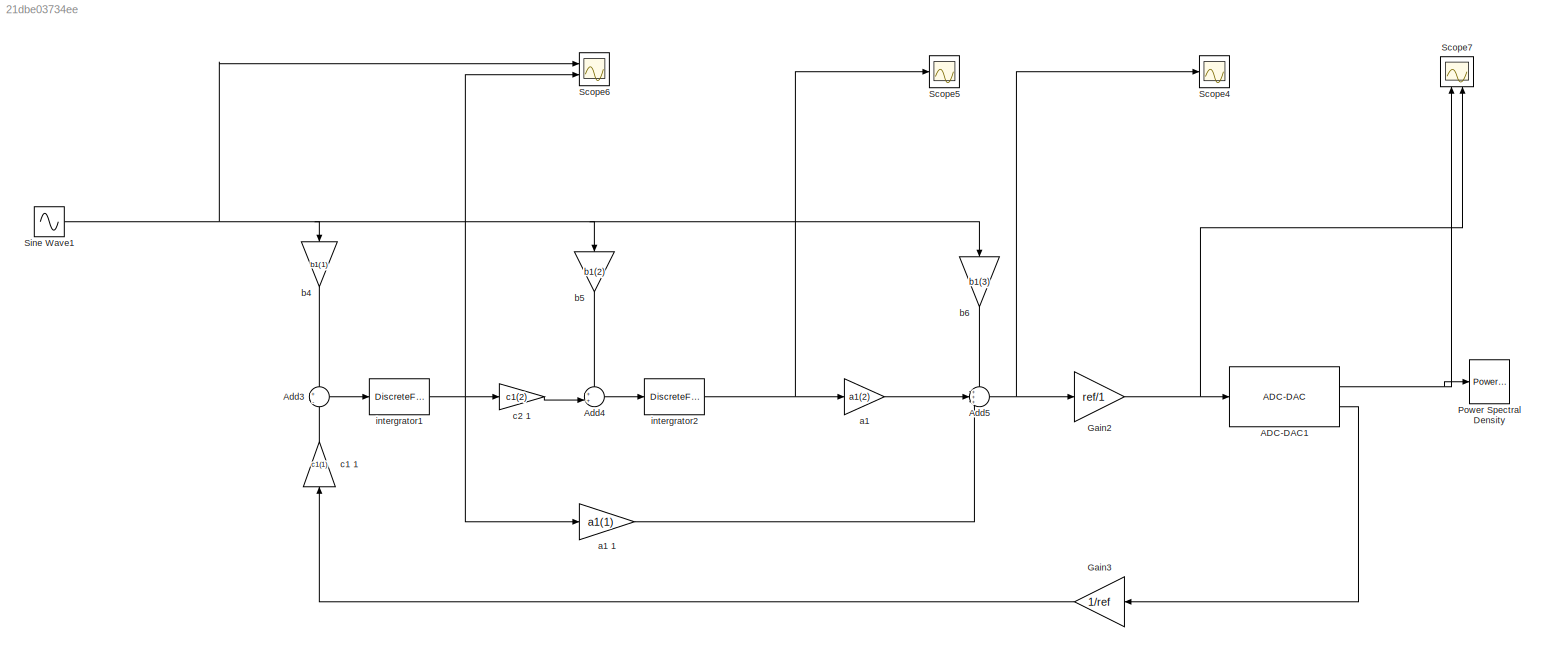
MODEL slx_21dbe03734ee
KIND model
CONFIG AbsTol = auto
CONFIG EnableMultiTasking = off
CONFIG FixedStep = auto
CONFIG InitFcn = %fs=1024*2e4;\n%osr=512;\nts=1/fs;\n\nNcycle=37;\nMpoints=2^16;\nfin=fs*Ncycle/Mpoints;\n\n\nref=2;\n
CONFIG MaxStep = auto
CONFIG MinStep = auto
CONFIG RelTol = 1e-3
CONFIG SampleTimeConstraint = Unconstrained
CONFIG Solver = VariableStepAuto
CONFIG SolverName = VariableStepAuto
CONFIG StartTime = 0.0
CONFIG StopTime = ts*(Mpoints+10)
BLOCK [Reference] ADC-DAC1  REF=SDtoolbox/ADC-DAC
  Ports = [1, 2]
  SourceBlock = SDtoolbox/ADC-DAC
  SourceProductName = SDtoolbox
BLOCK [Sum] Add3
  IconShape = round
  InputSameDT = off
  Inputs = +|-
  OutDataTypeStr = Inherit: Inherit via internal rule
  Ports = [2, 1]
  SaturateOnIntegerOverflow = off
BLOCK [Sum] Add4
  IconShape = round
  InputSameDT = off
  Inputs = ++|
  OutDataTypeStr = Inherit: Inherit via internal rule
  Ports = [2, 1]
  SaturateOnIntegerOverflow = off
BLOCK [Sum] Add5
  IconShape = round
  InputSameDT = off
  Inputs = +++
  OutDataTypeStr = Inherit: Inherit via internal rule
  Ports = [3, 1]
  SaturateOnIntegerOverflow = off
BLOCK [Gain] Gain2
  Gain = ref/1
  OutDataTypeStr = Inherit: Inherit via internal rule
  ParamDataTypeStr = Inherit: Inherit via internal rule
  SaturateOnIntegerOverflow = off
BLOCK [Gain] Gain3
  Gain = 1/ref
  OutDataTypeStr = Inherit: Inherit via internal rule
  ParamDataTypeStr = Inherit: Inherit via internal rule
  SaturateOnIntegerOverflow = off
BLOCK [Reference] Power Spectral Density  REF=SDtoolbox/Power Spectral Density
  Ports = [1]
  SourceBlock = SDtoolbox/Power Spectral Density
  SourceProductName = SDtoolbox
BLOCK [Scope] Scope4
  Floating = off
  NumInputPorts = 1
  Ports = [1]
  ScopeSpecificationString = Simulink.scopes.TimeScopeBlockCfg('CurrentConfiguration', extmgr.ConfigurationSet(extmgr.Configuration('Core','General UI',true),extmgr.Configuration('Core','Source UI',true),extmgr.Configuration('Sources','WiredSimulink',true,'DataLoggingVariableName','ScopeData1'),extmgr.Configuration('Visuals','Time Domain',true,'SerializedDisplays',{struct('MinYLimReal','-1.06355','MaxYLimReal','1.0553','YLabe...<+1483ch>
BLOCK [Scope] Scope5
  Floating = off
  NumInputPorts = 1
  Ports = [1]
  ScopeSpecificationString = Simulink.scopes.TimeScopeBlockCfg('CurrentConfiguration', extmgr.ConfigurationSet(extmgr.Configuration('Core','General UI',true),extmgr.Configuration('Core','Source UI',true),extmgr.Configuration('Sources','WiredSimulink',true,'DataLoggingVariableName','ScopeData2'),extmgr.Configuration('Visuals','Time Domain',true,'SerializedDisplays',{struct('MinYLimReal','-0.86863','MaxYLimReal','0.8532','YLabe...<+1491ch>
BLOCK [Scope] Scope6
  Floating = off
  NumInputPorts = 2
  Ports = [2]
  ScopeSpecificationString = Simulink.scopes.TimeScopeBlockCfg('CurrentConfiguration', extmgr.ConfigurationSet(extmgr.Configuration('Core','General UI',true),extmgr.Configuration('Core','Source UI',true),extmgr.Configuration('Sources','WiredSimulink',true,'DataLoggingVariableName','ScopeData3'),extmgr.Configuration('Visuals','Time Domain',true,'SerializedDisplays',{struct('MinYLimReal','-3.1022','MaxYLimReal','3.07338','YLabe...<+1581ch>
BLOCK [Scope] Scope7
  Floating = off
  NumInputPorts = 2
  Ports = [2]
  ScopeSpecificationString = Simulink.scopes.TimeScopeBlockCfg('CurrentConfiguration', extmgr.ConfigurationSet(extmgr.Configuration('Core','General UI',true),extmgr.Configuration('Core','Source UI',true),extmgr.Configuration('Sources','WiredSimulink',true),extmgr.Configuration('Visuals','Time Domain',true,'SerializedDisplays',{struct('MinYLimReal','-1.93889','MaxYLimReal','1.96346','YLabelReal','','MinYLimMag','0.00000','MaxY...<+1439ch>
BLOCK [Sin] Sine Wave1
  Amplitude = 0.435
  Frequency = fin*2*pi
  Ports = [0, 1]
  SampleTime = ts
BLOCK [Gain] a1
  Gain = a1(2)
  OutDataTypeStr = Inherit: Inherit via internal rule
  ParamDataTypeStr = Inherit: Inherit via internal rule
  SaturateOnIntegerOverflow = off
BLOCK [Gain] a1 1
  Gain = a1(1)
  OutDataTypeStr = Inherit: Inherit via internal rule
  ParamDataTypeStr = Inherit: Inherit via internal rule
  SaturateOnIntegerOverflow = off
BLOCK [Gain] b4
  Gain = b1(1)
  OutDataTypeStr = Inherit: Inherit via internal rule
  ParamDataTypeStr = Inherit: Inherit via internal rule
  SaturateOnIntegerOverflow = off
BLOCK [Gain] b5
  Gain = b1(2)
  OutDataTypeStr = Inherit: Inherit via internal rule
  ParamDataTypeStr = Inherit: Inherit via internal rule
  SaturateOnIntegerOverflow = off
BLOCK [Gain] b6
  Gain = b1(3)
  OutDataTypeStr = Inherit: Inherit via internal rule
  ParamDataTypeStr = Inherit: Inherit via internal rule
  SaturateOnIntegerOverflow = off
BLOCK [Gain] c1 1
  Gain = c1(1)
  OutDataTypeStr = Inherit: Inherit via internal rule
  ParamDataTypeStr = Inherit: Inherit via internal rule
  SaturateOnIntegerOverflow = off
BLOCK [Gain] c2 1
  Gain = c1(2)
  OutDataTypeStr = Inherit: Inherit via internal rule
  ParamDataTypeStr = Inherit: Inherit via internal rule
  SaturateOnIntegerOverflow = off
BLOCK [DiscreteFilter] intergrator1
  Denominator = [1 -1]
  InputPortMap = u0
  Numerator = [0 1]
  Ports = [1, 1]
BLOCK [DiscreteFilter] intergrator2
  Denominator = [1 -1]
  InputPortMap = u0
  Numerator = [0 1]
  Ports = [1, 1]
NET ADC-DAC1:1 -> Power Spectral Density:1, Scope7:1
LINE ADC-DAC1:2 -> Gain3:1
LINE Add3:1 -> intergrator1:1
LINE Add4:1 -> intergrator2:1
NET Add5:1 -> Gain2:1, Scope4:1
NET Gain2:1 -> ADC-DAC1:1, Scope7:2
LINE Gain3:1 -> c1 1:1
NET Sine Wave1:1 -> Scope6:1, b4:1, b5:1, b6:1
LINE a1 1:1 -> Add5:3
LINE a1:1 -> Add5:2
LINE b4:1 -> Add3:1
LINE b5:1 -> Add4:1
LINE b6:1 -> Add5:1
LINE c1 1:1 -> Add3:2
LINE c2 1:1 -> Add4:2
NET intergrator1:1 -> Scope6:2, a1 1:1, c2 1:1
NET intergrator2:1 -> Scope5:1, a1:1
note: NET lines group one-source signal fan-out (src -> all destinations, sorted); 1:1 wires keep LINE
